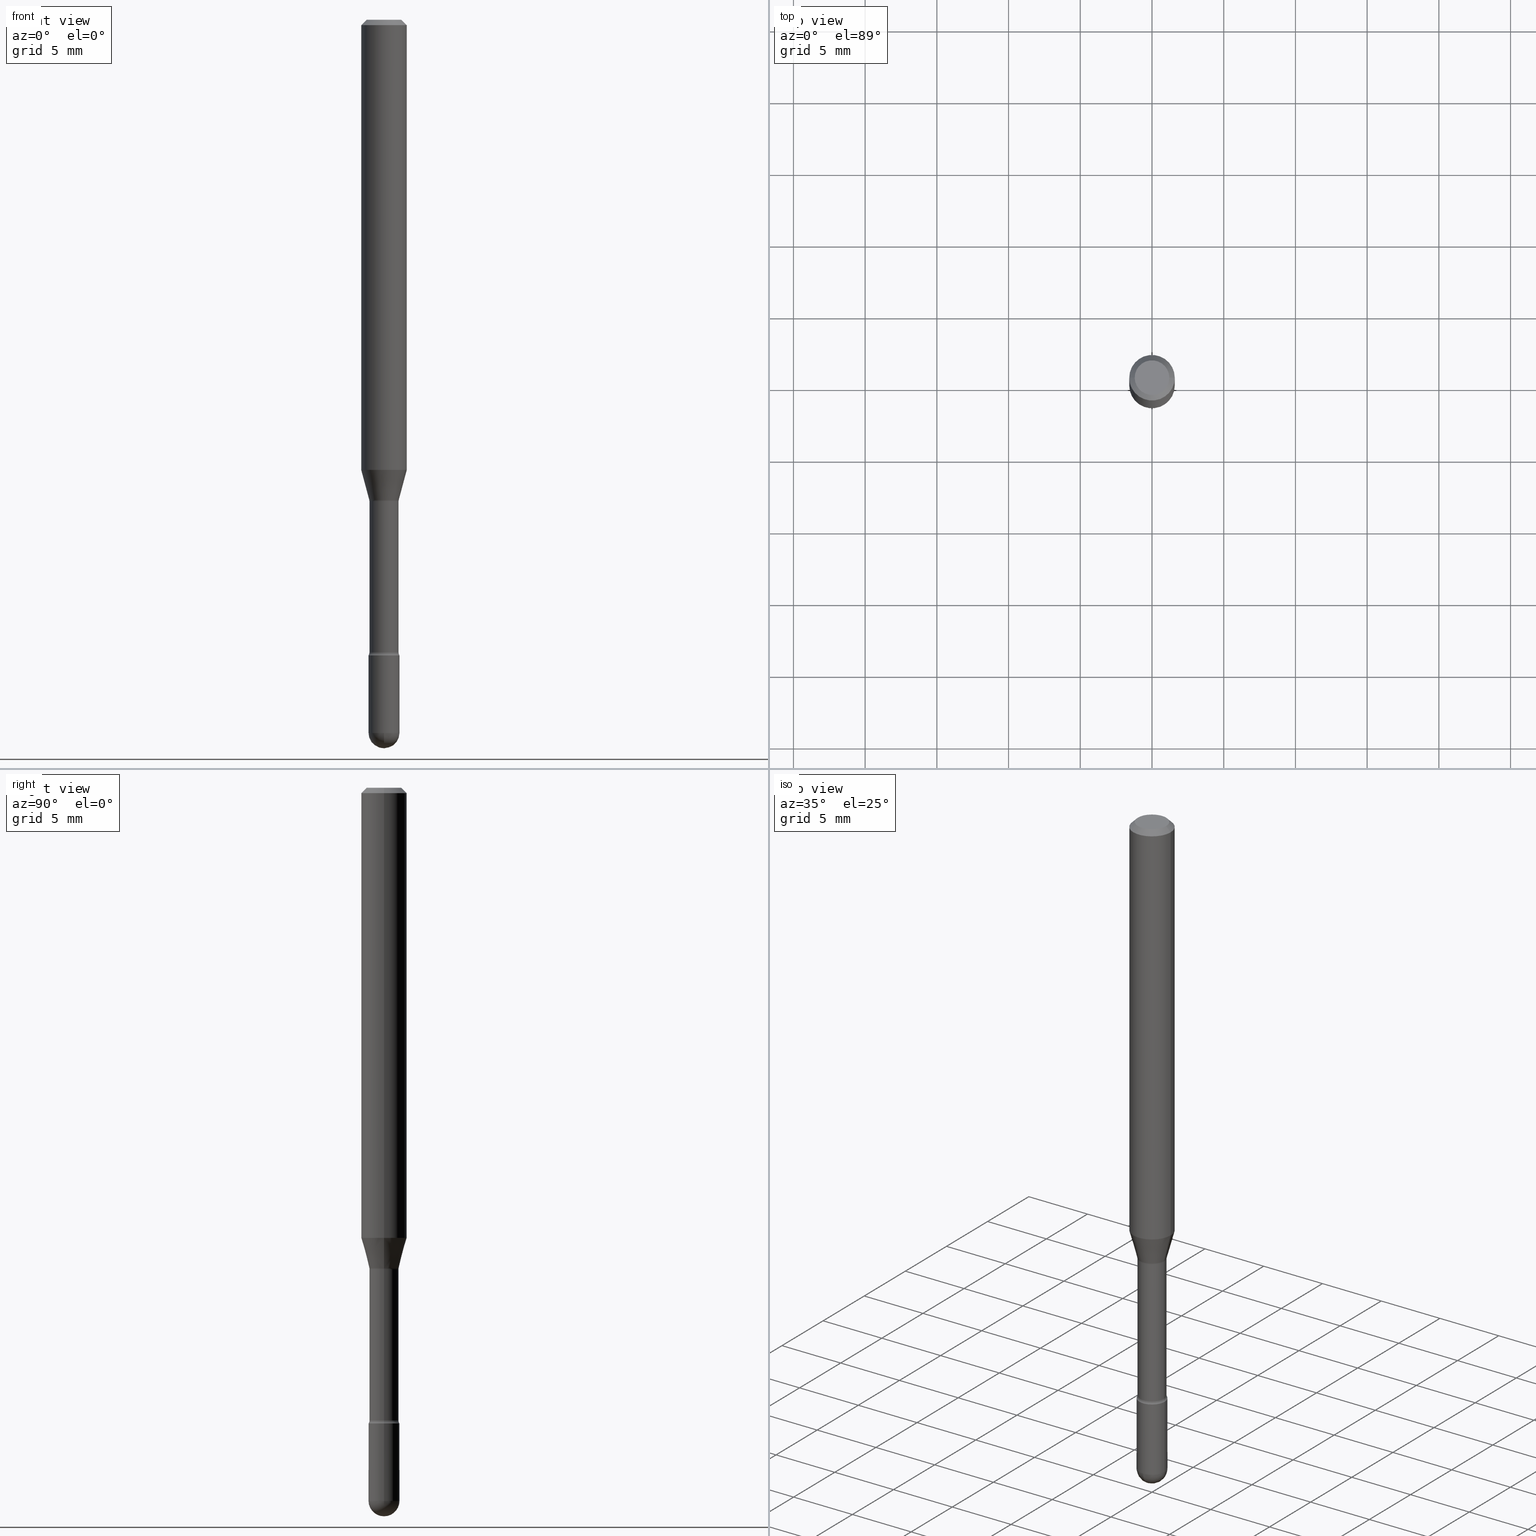
[diagram: canonical four-view strip — front | top / right | iso, engineering-drawing reading convention]
A machine part, canonical four-view strip (front | top / right | iso — engineering-drawing reading convention). The complete STEP part file that produces these views, byte-faithful:
ISO-10303-21;
HEADER;
FILE_DESCRIPTION (( 'STEP AP203' ),
    '1' );
FILE_NAME ('09823.STEP',
    '2024-04-10T01:52:32',
    ( '' ),
    ( '' ),
    'SwSTEP 2.0',
    'SolidWorks 2023',
    '' );
FILE_SCHEMA (( 'CONFIG_CONTROL_DESIGN' ));
ENDSEC;

DATA;
#1 = CARTESIAN_POINT ( 'NONE',  ( 0.05494999999999999885, -4.999364099989891634E-15, -1.321974787463811252 ) ) ;
#2 = AXIS2_PLACEMENT_3D ( 'NONE', #21, #414, #189 ) ;
#3 = DIRECTION ( 'NONE',  ( -2.445468806185136597E-29, 3.491481338843145583E-15, 1.000000000000000000 ) ) ;
#4 = EDGE_CURVE ( 'NONE', #18, #392, #115, .T. ) ;
#5 = AXIS2_PLACEMENT_3D ( 'NONE', #265, #38, #431 ) ;
#6 = CARTESIAN_POINT ( 'NONE',  ( 4.267343066793063832E-29, -6.092634936281288846E-15, -1.745000000000000107 ) ) ;
#7 = ADVANCED_FACE ( 'NONE', ( #364 ), #185, .T. ) ;
#8 = AXIS2_PLACEMENT_3D ( 'NONE', #566, #383, #518 ) ;
#9 = DIRECTION ( 'NONE',  ( -2.445468806185136597E-29, 3.491481338843145583E-15, 1.000000000000000000 ) ) ;
#10 = PERSON_AND_ORGANIZATION ( #53, #300 ) ;
#11 = DIRECTION ( 'NONE',  ( -2.445468806185136597E-29, 3.491481338843145583E-15, 1.000000000000000000 ) ) ;
#12 = ORIENTED_EDGE ( 'NONE', *, *, #231, .T. ) ;
#13 = APPROVAL_ROLE ( '' ) ;
#14 = ORIENTED_EDGE ( 'NONE', *, *, #320, .F. ) ;
#15 = AXIS2_PLACEMENT_3D ( 'NONE', #175, #173, #480 ) ;
#16 = AXIS2_PLACEMENT_3D ( 'NONE', #372, #37, #563 ) ;
#17 = DIRECTION ( 'NONE',  ( 1.000000000000000000, -6.982962677686276966E-15, 0.000000000000000000 ) ) ;
#18 = VERTEX_POINT ( 'NONE', #455 ) ;
#19 = LINE ( 'NONE', #488, #113 ) ;
#20 = CARTESIAN_POINT ( 'NONE',  ( 4.246883172195400307E-29, -6.063423629229748682E-15, -1.736633549139569688 ) ) ;
#21 = CARTESIAN_POINT ( 'NONE',  ( 0.000000000000000000, 0.000000000000000000, 0.000000000000000000 ) ) ;
#22 = EDGE_LOOP ( 'NONE', ( #191, #128, #499, #65 ) ) ;
#23 = DIRECTION ( 'NONE',  ( -1.000000000000000000, 6.982962677686266711E-15, 0.000000000000000000 ) ) ;
#24 = CYLINDRICAL_SURFACE ( 'NONE', #439, 0.06250000000000000000 ) ;
#25 = ORIENTED_EDGE ( 'NONE', *, *, #388, .T. ) ;
#26 = CARTESIAN_POINT ( 'NONE',  ( 0.03995000000000005491, -6.342392988203315207E-15, -1.736633549139569688 ) ) ;
#27 = EDGE_CURVE ( 'NONE', #90, #371, #487, .T. ) ;
#28 = ORIENTED_EDGE ( 'NONE', *, *, #522, .T. ) ;
#29 = DIRECTION ( 'NONE',  ( -2.445468806185136597E-29, 3.491481338843145583E-15, 1.000000000000000000 ) ) ;
#30 = FACE_OUTER_BOUND ( 'NONE', #130, .T. ) ;
#31 = DIRECTION ( 'NONE',  ( 1.000000000000000000, -6.982962677686276966E-15, 0.000000000000000000 ) ) ;
#32 = CYLINDRICAL_SURFACE ( 'NONE', #442, 0.04250000000000000999 ) ;
#33 = ADVANCED_FACE ( 'NONE', ( #103 ), #498, .T. ) ;
#34 = EDGE_CURVE ( 'NONE', #371, #90, #347, .T. ) ;
#35 = VECTOR ( 'NONE', #217, 39.37007874015748143 ) ;
#36 = AXIS2_PLACEMENT_3D ( 'NONE', #542, #413, #23 ) ;
#37 = DIRECTION ( 'NONE',  ( -2.445468806185136597E-29, 3.491481338843145583E-15, 1.000000000000000000 ) ) ;
#38 = DIRECTION ( 'NONE',  ( -2.445468806185136597E-29, 3.491481338843145583E-15, 1.000000000000000000 ) ) ;
#39 = CARTESIAN_POINT ( 'NONE',  ( 0.04250000000000000999, -2.967759138016664042E-16, 2.072375129713273202E-30 ) ) ;
#40 = DIRECTION ( 'NONE',  ( 1.000000000000000000, -6.982962677686273810E-15, 0.000000000000000000 ) ) ;
#41 = FACE_OUTER_BOUND ( 'NONE', #210, .T. ) ;
#42 = AXIS2_PLACEMENT_3D ( 'NONE', #551, #283, #377 ) ;
#43 = ADVANCED_FACE ( 'NONE', ( #249 ), #557, .F. ) ;
#44 = DIRECTION ( 'NONE',  ( 6.982962677686265922E-15, 1.000000000000000000, -6.427877632151215276E-15 ) ) ;
#45 = AXIS2_PLACEMENT_3D ( 'NONE', #468, #508, #244 ) ;
#46 = AXIS2_PLACEMENT_3D ( 'NONE', #484, #9, #350 ) ;
#47 = ORIENTED_EDGE ( 'NONE', *, *, #343, .F. ) ;
#48 = DIRECTION ( 'NONE',  ( 7.105427357601001859E-15, 1.000000000000000000, -3.491481338843145583E-15 ) ) ;
#49 = EDGE_CURVE ( 'NONE', #450, #473, #63, .T. ) ;
#50 = DESIGN_CONTEXT ( 'detailed design', #174, 'design' ) ;
#51 = EDGE_CURVE ( 'NONE', #314, #198, #71, .T. ) ;
#52 = DIRECTION ( 'NONE',  ( -2.445468806185136597E-29, 3.491481338843145583E-15, 1.000000000000000000 ) ) ;
#53 = PERSON ( 'UNSPECIFIED', 'UNSPECIFIED', 'UNSPECIFIED', ('UNSPECIFIED'), ('UNSPECIFIED'), ('UNSPECIFIED') ) ;
#54 = APPROVAL_DATE_TIME ( #544, #524 ) ;
#55 = TOROIDAL_SURFACE ( 'NONE', #100, 0.05494999999999999885, 0.01500000000000003240 ) ;
#56 = UNCERTAINTY_MEASURE_WITH_UNIT (LENGTH_MEASURE( 1.000000000000000082E-05 ), #500, 'distance_accuracy_value', 'NONE');
#57 = ORIENTED_EDGE ( 'NONE', *, *, #4, .F. ) ;
#58 = EDGE_CURVE ( 'NONE', #238, #277, #429, .T. ) ;
#59 = EDGE_LOOP ( 'NONE', ( #415, #119, #474, #502, #288 ) ) ;
#60 = CC_DESIGN_PERSON_AND_ORGANIZATION_ASSIGNMENT ( #10, #224, ( #259 ) ) ;
#61 = EDGE_LOOP ( 'NONE', ( #340, #565, #83, #281 ) ) ;
#62 = CIRCLE ( 'NONE', #46, 0.04250000000000000999 ) ;
#63 = CIRCLE ( 'NONE', #381, 0.04249999999999999611 ) ;
#64 = TOROIDAL_SURFACE ( 'NONE', #355, 0.05494999999999999885, 0.01500000000000003240 ) ;
#65 = ORIENTED_EDGE ( 'NONE', *, *, #4, .T. ) ;
#66 = DIRECTION ( 'NONE',  ( 1.000000000000000000, -6.982962677686268288E-15, 4.883557194083112901E-29 ) ) ;
#67 = EDGE_CURVE ( 'NONE', #148, #450, #126, .T. ) ;
#68 = ORIENTED_EDGE ( 'NONE', *, *, #503, .F. ) ;
#69 = VERTEX_POINT ( 'NONE', #425 ) ;
#70 = APPROVAL_PERSON_ORGANIZATION ( #489, #236, #13 ) ;
#71 = CIRCLE ( 'NONE', #102, 0.04250000000000000999 ) ;
#72 = CARTESIAN_POINT ( 'NONE',  ( 4.787005188107404686E-29, -6.834574720785457840E-15, -1.957500000000000018 ) ) ;
#73 = AXIS2_PLACEMENT_3D ( 'NONE', #330, #120, #385 ) ;
#74 = DIRECTION ( 'NONE',  ( -2.445468806185136597E-29, 3.491481338843145583E-15, 1.000000000000000000 ) ) ;
#75 = CARTESIAN_POINT ( 'NONE',  ( 0.06250000000000000000, -4.811533449433681963E-16, -0.01500000000000008271 ) ) ;
#76 = DIRECTION ( 'NONE',  ( -2.445468806185136877E-29, 3.491481338843145188E-15, 1.000000000000000000 ) ) ;
#77 = APPLICATION_PROTOCOL_DEFINITION ( 'international standard', 'config_control_design', 1994, #174 ) ;
#78 = APPROVAL_DATE_TIME ( #240, #236 ) ;
#79 = EDGE_LOOP ( 'NONE', ( #96, #323, #95, #517 ) ) ;
#80 = CARTESIAN_POINT ( 'NONE',  ( 3.232848105305976376E-29, -4.615650300851030950E-15, -1.321974787463811252 ) ) ;
#81 = APPROVAL_PERSON_ORGANIZATION ( #318, #524, #366 ) ;
#82 = DIRECTION ( 'NONE',  ( -1.000000000000000000, 7.105427357601009747E-15, 0.000000000000000000 ) ) ;
#83 = ORIENTED_EDGE ( 'NONE', *, *, #304, .T. ) ;
#84 = FACE_OUTER_BOUND ( 'NONE', #548, .T. ) ;
#85 = CIRCLE ( 'NONE', #403, 0.04046111260566397777 ) ;
#86 = CARTESIAN_POINT ( 'NONE',  ( -0.05494999999999999885, -4.225207067550855512E-15, -1.321974787463811252 ) ) ;
#87 = ADVANCED_FACE ( 'NONE', ( #423 ), #55, .F. ) ;
#88 = TOROIDAL_SURFACE ( 'NONE', #260, 0.05495000000000005436, 0.01499999999999999598 ) ;
#89 = DIRECTION ( 'NONE',  ( -1.000000000000000000, 6.982962677686265922E-15, -4.883557194083112340E-29 ) ) ;
#90 = VERTEX_POINT ( 'NONE', #26 ) ;
#91 = DATE_AND_TIME ( #410, #380 ) ;
#92 = APPROVAL_STATUS ( 'not_yet_approved' ) ;
#93 = ORIENTED_EDGE ( 'NONE', *, *, #51, .F. ) ;
#94 = EDGE_CURVE ( 'NONE', #371, #392, #111, .T. ) ;
#95 = ORIENTED_EDGE ( 'NONE', *, *, #133, .T. ) ;
#96 = ORIENTED_EDGE ( 'NONE', *, *, #94, .F. ) ;
#97 = DIRECTION ( 'NONE',  ( 1.000000000000000000, -6.982962677686270655E-15, 0.000000000000000000 ) ) ;
#98 = PERSON_AND_ORGANIZATION ( #53, #300 ) ;
#99 = ORIENTED_EDGE ( 'NONE', *, *, #477, .T. ) ;
#100 = AXIS2_PLACEMENT_3D ( 'NONE', #80, #29, #504 ) ;
#101 = APPROVAL_PERSON_ORGANIZATION ( #459, #215, #151 ) ;
#102 = AXIS2_PLACEMENT_3D ( 'NONE', #72, #333, #286 ) ;
#103 = FACE_OUTER_BOUND ( 'NONE', #362, .T. ) ;
#104 = LENGTH_MEASURE_WITH_UNIT ( LENGTH_MEASURE( 0.02539999999999999897 ), #326 );
#105 = ORIENTED_EDGE ( 'NONE', *, *, #452, .F. ) ;
#106 = APPROVAL_STATUS ( 'not_yet_approved' ) ;
#107 =( NAMED_UNIT ( * ) PLANE_ANGLE_UNIT ( ) SI_UNIT ( $, .RADIAN. ) );
#108 = ORIENTED_EDGE ( 'NONE', *, *, #494, .F. ) ;
#109 = CARTESIAN_POINT ( 'NONE',  ( 3.223354096787303073E-29, -4.602095372859339575E-15, -1.318092501787273330 ) ) ;
#110 = VERTEX_POINT ( 'NONE', #282 ) ;
#111 = LINE ( 'NONE', #194, #183 ) ;
#112 = SHAPE_DEFINITION_REPRESENTATION ( #138, #436 ) ;
#113 = VECTOR ( 'NONE', #493, 39.37007874015748143 ) ;
#114 = LOCAL_TIME ( 21, 52, 32.00000000000000000, #140 ) ;
#115 = CIRCLE ( 'NONE', #242, 0.03994999999999999246 ) ;
#116 = CARTESIAN_POINT ( 'NONE',  ( 4.267343066793063832E-29, -6.092634936281288846E-15, -1.745000000000000107 ) ) ;
#117 = CONICAL_SURFACE ( 'NONE', #227, 0.04046111260566397777, 0.2617993877991501295 ) ;
#118 = DIRECTION ( 'NONE',  ( -0.2588190451025214611, 5.211531920934551042E-15, 0.9659258262890682012 ) ) ;
#119 = ORIENTED_EDGE ( 'NONE', *, *, #452, .T. ) ;
#120 = DIRECTION ( 'NONE',  ( -1.000000000000000000, 7.105427357601001070E-15, -4.926315508542082329E-29 ) ) ;
#121 = APPLICATION_CONTEXT ( 'configuration controlled 3d designs of mechanical parts and assemblies' ) ;
#122 = PRODUCT_RELATED_PRODUCT_CATEGORY ( 'detail', '', ( #337 ) ) ;
#123 = DIRECTION ( 'NONE',  ( -0.7071067811865475727, 2.468850131082257455E-15, -0.7071067811865474617 ) ) ;
#124 = CARTESIAN_POINT ( 'NONE',  ( -1.169113584055446105E-44, 1.669184350826100908E-30, 4.780733988912460139E-16 ) ) ;
#125 = EDGE_CURVE ( 'NONE', #110, #314, #534, .T. ) ;
#126 = LINE ( 'NONE', #39, #397 ) ;
#127 = DIRECTION ( 'NONE',  ( -6.982962677686266711E-15, -1.000000000000000000, 3.491481338843145583E-15 ) ) ;
#128 = ORIENTED_EDGE ( 'NONE', *, *, #303, .F. ) ;
#129 = CIRCLE ( 'NONE', #507, 0.06250000000000000000 ) ;
#130 = EDGE_LOOP ( 'NONE', ( #199, #490, #475, #446 ) ) ;
#131 = FACE_OUTER_BOUND ( 'NONE', #315, .T. ) ;
#132 = PLANE ( 'NONE',  #207 ) ;
#133 = EDGE_CURVE ( 'NONE', #90, #18, #280, .T. ) ;
#134 = AXIS2_PLACEMENT_3D ( 'NONE', #412, #153, #324 ) ;
#135 = ADVANCED_FACE ( 'NONE', ( #196 ), #88, .F. ) ;
#136 = DIRECTION ( 'NONE',  ( -2.438088387897960049E-29, 3.491481338843145188E-15, 1.000000000000000000 ) ) ;
#137 = AXIS2_PLACEMENT_3D ( 'NONE', #172, #89, #44 ) ;
#138 = PRODUCT_DEFINITION_SHAPE ( 'NONE', 'NONE',  #312 ) ;
#139 = DIMENSIONAL_EXPONENTS ( 1.000000000000000000, 0.000000000000000000, 0.000000000000000000, 0.000000000000000000, 0.000000000000000000, 0.000000000000000000, 0.000000000000000000 ) ;
#140 = COORDINATED_UNIVERSAL_TIME_OFFSET ( 5, 0, .BEHIND. ) ;
#141 = VECTOR ( 'NONE', #154, 39.37007874015748143 ) ;
#142 = COORDINATED_UNIVERSAL_TIME_OFFSET ( 5, 0, .BEHIND. ) ;
#143 = VERTEX_POINT ( 'NONE', #306 ) ;
#144 = VECTOR ( 'NONE', #118, 39.37007874015747433 ) ;
#145 = ADVANCED_FACE ( 'NONE', ( #235 ), #117, .T. ) ;
#146 = VERTEX_POINT ( 'NONE', #209 ) ;
#147 = EDGE_CURVE ( 'NONE', #110, #146, #510, .T. ) ;
#148 = VERTEX_POINT ( 'NONE', #289 ) ;
#149 = ORIENTED_EDGE ( 'NONE', *, *, #486, .T. ) ;
#150 = DIRECTION ( 'NONE',  ( 1.000000000000000000, -6.982962677686266711E-15, 4.852736867747366207E-29 ) ) ;
#151 = APPROVAL_ROLE ( '' ) ;
#152 = ORIENTED_EDGE ( 'NONE', *, *, #125, .T. ) ;
#153 = DIRECTION ( 'NONE',  ( -2.445468806185136597E-29, 3.491481338843145583E-15, 1.000000000000000000 ) ) ;
#154 = DIRECTION ( 'NONE',  ( -2.445468806185136877E-29, 3.491481338843145188E-15, 1.000000000000000000 ) ) ;
#155 = ORIENTED_EDGE ( 'NONE', *, *, #537, .F. ) ;
#156 = CARTESIAN_POINT ( 'NONE',  ( 3.316907271900976096E-16, 0.04749999999999999362, 3.181781981480094004E-17 ) ) ;
#157 = CARTESIAN_POINT ( 'NONE',  ( 3.668203209277725232E-31, -5.237222008264747365E-17, -0.01500000000000008271 ) ) ;
#158 = DIRECTION ( 'NONE',  ( 1.000000000000000000, -6.982962677686255667E-15, 0.000000000000000000 ) ) ;
#159 = DIRECTION ( 'NONE',  ( 1.000000000000000000, -6.982962677686266711E-15, 4.852736867747366207E-29 ) ) ;
#160 = DIRECTION ( 'NONE',  ( 1.000000000000000000, -6.982962677686276966E-15, 0.000000000000000000 ) ) ;
#161 = CIRCLE ( 'NONE', #134, 0.04250000000000000999 ) ;
#162 = CC_DESIGN_PERSON_AND_ORGANIZATION_ASSIGNMENT ( #351, #531, ( #204 ) ) ;
#163 = CIRCLE ( 'NONE', #438, 0.04249999999999999611 ) ;
#164 = CARTESIAN_POINT ( 'NONE',  ( -1.169113584055446105E-44, 1.669184350826100908E-30, 4.780733988912460139E-16 ) ) ;
#165 = DIRECTION ( 'NONE',  ( -2.445468806185136597E-29, 3.491481338843145583E-15, 1.000000000000000000 ) ) ;
#166 = CARTESIAN_POINT ( 'NONE',  ( 0.04749999999999999362, -4.035134999187581581E-16, -8.274703207154280181E-17 ) ) ;
#167 = CARTESIAN_POINT ( 'NONE',  ( -0.04249999999999998918, -5.790654273583246394E-15, -1.745000000000000107 ) ) ;
#168 = CARTESIAN_POINT ( 'NONE',  ( 2.967759138017140317E-16, 0.04249999999999314049, -1.957500000000000462 ) ) ;
#169 = LINE ( 'NONE', #341, #396 ) ;
#170 = AXIS2_PLACEMENT_3D ( 'NONE', #361, #538, #274 ) ;
#171 = DIRECTION ( 'NONE',  ( -2.445468806185136597E-29, 3.491481338843145583E-15, 1.000000000000000000 ) ) ;
#172 = CARTESIAN_POINT ( 'NONE',  ( 4.787005188107404686E-29, -6.834574720785457840E-15, -1.957500000000000018 ) ) ;
#173 = DIRECTION ( 'NONE',  ( -1.000000000000000000, 6.982962677686265922E-15, -4.883557194083112340E-29 ) ) ;
#174 = APPLICATION_CONTEXT ( 'configuration controlled 3d designs of mechanical parts and assemblies' ) ;
#175 = CARTESIAN_POINT ( 'NONE',  ( 4.787005188107404686E-29, -6.834574720785457840E-15, -1.957500000000000018 ) ) ;
#176 = CARTESIAN_POINT ( 'NONE',  ( -0.04046111260566397777, -4.092716417593515738E-15, -1.318092501787273330 ) ) ;
#177 = DIRECTION ( 'NONE',  ( 1.000000000000000000, -6.982962677686266711E-15, 4.876176775795935793E-29 ) ) ;
#178 = PERSON_AND_ORGANIZATION_ROLE ( 'creator' ) ;
#179 = CALENDAR_DATE ( 2024, 9, 4 ) ;
#180 = AXIS2_PLACEMENT_3D ( 'NONE', #269, #223, #97 ) ;
#181 = LOCAL_TIME ( 21, 52, 32.00000000000000000, #202 ) ;
#182 = ORIENTED_EDGE ( 'NONE', *, *, #125, .F. ) ;
#183 = VECTOR ( 'NONE', #550, 39.37007874015748143 ) ;
#184 = EDGE_LOOP ( 'NONE', ( #68, #270, #149, #12 ) ) ;
#185 = CYLINDRICAL_SURFACE ( 'NONE', #170, 0.03995000000000002716 ) ;
#186 = ORIENTED_EDGE ( 'NONE', *, *, #470, .T. ) ;
#187 = CARTESIAN_POINT ( 'NONE',  ( 3.223354096787303073E-29, -4.602095372859339575E-15, -1.318092501787273330 ) ) ;
#188 = DIRECTION ( 'NONE',  ( -2.445468806185136597E-29, 3.491481338843145583E-15, 1.000000000000000000 ) ) ;
#189 = DIRECTION ( 'NONE',  ( 1.000000000000000000, -6.982962677686266711E-15, 4.876176775795935793E-29 ) ) ;
#190 = DATE_TIME_ROLE ( 'creation_date' ) ;
#191 = ORIENTED_EDGE ( 'NONE', *, *, #388, .F. ) ;
#192 = CARTESIAN_POINT ( 'NONE',  ( 4.246883172195400307E-29, -6.063423629229748682E-15, -1.736633549139569688 ) ) ;
#193 = EDGE_LOOP ( 'NONE', ( #536, #353 ) ) ;
#194 = CARTESIAN_POINT ( 'NONE',  ( -0.03995000000000002716, 2.838618229361618935E-16, 4.780733988912441404E-16 ) ) ;
#195 = DIRECTION ( 'NONE',  ( 0.2588190451025214611, 1.565188264969621573E-15, 0.9659258262890682012 ) ) ;
#196 = FACE_OUTER_BOUND ( 'NONE', #61, .T. ) ;
#197 = DIRECTION ( 'NONE',  ( -2.445468806185136597E-29, 3.491481338843145583E-15, 1.000000000000000000 ) ) ;
#198 = VERTEX_POINT ( 'NONE', #247 ) ;
#199 = ORIENTED_EDGE ( 'NONE', *, *, #465, .F. ) ;
#200 = DIRECTION ( 'NONE',  ( 2.438088387897960049E-29, -3.491481338843145188E-15, -1.000000000000000000 ) ) ;
#201 = CARTESIAN_POINT ( 'NONE',  ( 4.267343066793063832E-29, -6.092634936281288846E-15, -1.745000000000000107 ) ) ;
#202 = COORDINATED_UNIVERSAL_TIME_OFFSET ( 5, 0, .BEHIND. ) ;
#203 = AXIS2_PLACEMENT_3D ( 'NONE', #546, #11, #541 ) ;
#204 = PRODUCT_DEFINITION_FORMATION_WITH_SPECIFIED_SOURCE ( 'ANY', '', #337, .NOT_KNOWN. ) ;
#205 = ADVANCED_FACE ( 'NONE', ( #424 ), #32, .T. ) ;
#206 = CARTESIAN_POINT ( 'NONE',  ( 2.023552857353652888E-45, -2.889097183224559242E-31, -8.274703207154537794E-17 ) ) ;
#207 = AXIS2_PLACEMENT_3D ( 'NONE', #6, #345, #219 ) ;
#208 = DIRECTION ( 'NONE',  ( -2.445468806185136597E-29, 3.491481338843145583E-15, 1.000000000000000000 ) ) ;
#209 = CARTESIAN_POINT ( 'NONE',  ( -3.019806626979944802E-16, -0.04250000000000681705, -1.957499999999999796 ) ) ;
#210 = EDGE_LOOP ( 'NONE', ( #14, #271, #28, #449 ) ) ;
#211 = DIRECTION ( 'NONE',  ( 1.000000000000000000, -6.982962677686265922E-15, 0.000000000000000000 ) ) ;
#212 = CARTESIAN_POINT ( 'NONE',  ( -0.04046111260566397777, -4.314601876432080730E-15, -1.318092501787273330 ) ) ;
#213 = FACE_OUTER_BOUND ( 'NONE', #311, .T. ) ;
#214 = CARTESIAN_POINT ( 'NONE',  ( 3.668203209277725232E-31, -5.237222008264747365E-17, -0.01500000000000008271 ) ) ;
#215 = APPROVAL ( #106, 'UNSPECIFIED' ) ;
#216 = EDGE_CURVE ( 'NONE', #146, #148, #62, .T. ) ;
#217 = DIRECTION ( 'NONE',  ( -2.445468806185136877E-29, 3.491481338843145188E-15, 1.000000000000000000 ) ) ;
#218 = CC_DESIGN_DATE_AND_TIME_ASSIGNMENT ( #352, #310, ( #259 ) ) ;
#219 = DIRECTION ( 'NONE',  ( 1.000000000000000000, -6.982962677686265922E-15, 4.876176775795935793E-29 ) ) ;
#220 = ADVANCED_FACE ( 'NONE', ( #530 ), #256, .T. ) ;
#221 = DIRECTION ( 'NONE',  ( 1.000000000000000000, -6.982962677686269866E-15, 4.883557194083114022E-29 ) ) ;
#222 = COORDINATED_UNIVERSAL_TIME_OFFSET ( 5, 0, .BEHIND. ) ;
#223 = DIRECTION ( 'NONE',  ( -6.982962677686266711E-15, -1.000000000000000000, 3.491481338843145583E-15 ) ) ;
#224 = PERSON_AND_ORGANIZATION_ROLE ( 'classification_officer' ) ;
#225 = EDGE_LOOP ( 'NONE', ( #279, #295, #319, #495 ) ) ;
#226 = CARTESIAN_POINT ( 'NONE',  ( 3.232848105305976376E-29, -4.615650300851030950E-15, -1.321974787463811252 ) ) ;
#227 = AXIS2_PLACEMENT_3D ( 'NONE', #553, #511, #160 ) ;
#228 = AXIS2_PLACEMENT_3D ( 'NONE', #322, #278, #543 ) ;
#229 = COORDINATED_UNIVERSAL_TIME_OFFSET ( 5, 0, .BEHIND. ) ;
#230 = ORIENTED_EDGE ( 'NONE', *, *, #49, .T. ) ;
#231 = EDGE_CURVE ( 'NONE', #338, #367, #456, .T. ) ;
#232 = CONICAL_SURFACE ( 'NONE', #556, 0.06250000000000000000, 0.7853981633974483900 ) ;
#233 = DATE_AND_TIME ( #398, #114 ) ;
#234 = ORIENTED_EDGE ( 'NONE', *, *, #512, .F. ) ;
#235 = FACE_OUTER_BOUND ( 'NONE', #402, .T. ) ;
#236 = APPROVAL ( #92, 'UNSPECIFIED' ) ;
#237 = DIRECTION ( 'NONE',  ( 1.000000000000000000, -6.982962677686265922E-15, 0.000000000000000000 ) ) ;
#238 = VERTEX_POINT ( 'NONE', #426 ) ;
#239 = ADVANCED_FACE ( 'NONE', ( #463 ), #316, .F. ) ;
#240 = DATE_AND_TIME ( #378, #181 ) ;
#241 = ORIENTED_EDGE ( 'NONE', *, *, #27, .F. ) ;
#242 = AXIS2_PLACEMENT_3D ( 'NONE', #226, #405, #17 ) ;
#243 = CLOSED_SHELL ( 'NONE', ( #205, #430, #448, #220, #529 ) ) ;
#244 = DIRECTION ( 'NONE',  ( 1.000000000000000000, 0.000000000000000000, 0.000000000000000000 ) ) ;
#245 = MECHANICAL_CONTEXT ( 'NONE', #121, 'mechanical' ) ;
#246 = LINE ( 'NONE', #212, #144 ) ;
#247 = CARTESIAN_POINT ( 'NONE',  ( -0.04250000000000000999, -6.161624165835330496E-15, -1.957500000000000018 ) ) ;
#248 = EDGE_LOOP ( 'NONE', ( #516, #152, #234, #407 ) ) ;
#249 = FACE_OUTER_BOUND ( 'NONE', #193, .T. ) ;
#250 = DIRECTION ( 'NONE',  ( -2.445468806185136597E-29, 3.491481338843145583E-15, 1.000000000000000000 ) ) ;
#251 = AXIS2_PLACEMENT_3D ( 'NONE', #1, #127, #158 ) ;
#252 = CIRCLE ( 'NONE', #454, 0.04250000000000000999 ) ;
#253 = AXIS2_PLACEMENT_3D ( 'NONE', #206, #325, #387 ) ;
#254 = CARTESIAN_POINT ( 'NONE',  ( -0.03994999999999999246, -5.055675142104229106E-15, -1.321974787463811252 ) ) ;
#255 = FACE_OUTER_BOUND ( 'NONE', #451, .T. ) ;
#256 = SPHERICAL_SURFACE ( 'NONE', #15, 0.04249999999999994754 ) ;
#257 = ORIENTED_EDGE ( 'NONE', *, *, #458, .F. ) ;
#258 = CIRCLE ( 'NONE', #299, 0.06250000000000000000 ) ;
#259 = SECURITY_CLASSIFICATION ( '', '', #305 ) ;
#260 = AXIS2_PLACEMENT_3D ( 'NONE', #273, #293, #66 ) ;
#261 = DIRECTION ( 'NONE',  ( 2.445468806185136597E-29, -3.491481338843145583E-15, -1.000000000000000000 ) ) ;
#262 = CARTESIAN_POINT ( 'NONE',  ( 3.223354096787303073E-29, -4.602095372859339575E-15, -1.318092501787273330 ) ) ;
#263 = CARTESIAN_POINT ( 'NONE',  ( 3.668203209277725232E-31, -5.237222008264747365E-17, -0.01500000000000008271 ) ) ;
#264 = EDGE_CURVE ( 'NONE', #473, #450, #479, .T. ) ;
#265 = CARTESIAN_POINT ( 'NONE',  ( 2.023552857353652888E-45, -2.889097183224559242E-31, -8.274703207154537794E-17 ) ) ;
#266 = CALENDAR_DATE ( 2024, 9, 4 ) ;
#267 = ADVANCED_FACE ( 'NONE', ( #432 ), #336, .T. ) ;
#268 = CC_DESIGN_APPROVAL ( #236, ( #259 ) ) ;
#269 = CARTESIAN_POINT ( 'NONE',  ( 0.05495000000000005436, -6.447137428368609366E-15, -1.736633549139569688 ) ) ;
#270 = ORIENTED_EDGE ( 'NONE', *, *, #58, .F. ) ;
#271 = ORIENTED_EDGE ( 'NONE', *, *, #472, .T. ) ;
#272 = ORIENTED_EDGE ( 'NONE', *, *, #216, .T. ) ;
#273 = CARTESIAN_POINT ( 'NONE',  ( 4.246883172195400307E-29, -6.063423629229748682E-15, -1.736633549139569688 ) ) ;
#274 = DIRECTION ( 'NONE',  ( 1.000000000000000000, -6.982962677686265922E-15, 4.858810380723266639E-29 ) ) ;
#275 = CIRCLE ( 'NONE', #5, 0.04749999999999999362 ) ;
#276 = CC_DESIGN_PERSON_AND_ORGANIZATION_ASSIGNMENT ( #98, #491, ( #312 ) ) ;
#277 = VERTEX_POINT ( 'NONE', #166 ) ;
#278 = DIRECTION ( 'NONE',  ( 7.105427357601001859E-15, 1.000000000000000000, -3.491481338843145583E-15 ) ) ;
#279 = ORIENTED_EDGE ( 'NONE', *, *, #458, .T. ) ;
#280 = LINE ( 'NONE', #376, #309 ) ;
#281 = ORIENTED_EDGE ( 'NONE', *, *, #470, .F. ) ;
#282 = CARTESIAN_POINT ( 'NONE',  ( 4.892754840734779604E-29, -6.980360303238103264E-15, -2.000000000000000000 ) ) ;
#283 = DIRECTION ( 'NONE',  ( -2.445468806185136597E-29, 3.491481338843145583E-15, 1.000000000000000000 ) ) ;
#284 = CIRCLE ( 'NONE', #496, 0.01500000000000002720 ) ;
#285 = CONICAL_SURFACE ( 'NONE', #301, 0.04046111260566397777, 0.2617993877991501295 ) ;
#286 = DIRECTION ( 'NONE',  ( 1.000000000000000000, -6.982962677686273810E-15, 0.000000000000000000 ) ) ;
#287 = CARTESIAN_POINT ( 'NONE',  ( 4.267343066793063832E-29, -6.092634936281288846E-15, -1.745000000000000107 ) ) ;
#288 = ORIENTED_EDGE ( 'NONE', *, *, #512, .T. ) ;
#289 = CARTESIAN_POINT ( 'NONE',  ( 0.04250000000000000999, -6.760380742335040388E-15, -1.957500000000000018 ) ) ;
#290 = PERSON_AND_ORGANIZATION_ROLE ( 'design_owner' ) ;
#291 = CARTESIAN_POINT ( 'NONE',  ( -1.169113584055446105E-44, 1.669184350826100908E-30, 4.780733988912460139E-16 ) ) ;
#292 = DIRECTION ( 'NONE',  ( 0.7071067811865475727, -7.319954787623256045E-15, -0.7071067811865474617 ) ) ;
#293 = DIRECTION ( 'NONE',  ( -2.445468806185136597E-29, 3.491481338843145583E-15, 1.000000000000000000 ) ) ;
#294 = CARTESIAN_POINT ( 'NONE',  ( 0.06250000000000000000, -4.888073874380391431E-16, -0.01500000000000008271 ) ) ;
#295 = ORIENTED_EDGE ( 'NONE', *, *, #465, .T. ) ;
#296 = PLANE ( 'NONE',  #506 ) ;
#297 = ORIENTED_EDGE ( 'NONE', *, *, #477, .F. ) ;
#298 = LINE ( 'NONE', #478, #35 ) ;
#299 = AXIS2_PLACEMENT_3D ( 'NONE', #394, #346, #302 ) ;
#300 = ORGANIZATION ( 'UNSPECIFIED', 'UNSPECIFIED', '' ) ;
#301 = AXIS2_PLACEMENT_3D ( 'NONE', #262, #434, #447 ) ;
#302 = DIRECTION ( 'NONE',  ( 1.000000000000000000, -6.982962677686270655E-15, 0.000000000000000000 ) ) ;
#303 = EDGE_CURVE ( 'NONE', #69, #386, #382, .T. ) ;
#304 = EDGE_CURVE ( 'NONE', #505, #521, #331, .T. ) ;
#305 = SECURITY_CLASSIFICATION_LEVEL ( 'unclassified' ) ;
#306 = CARTESIAN_POINT ( 'NONE',  ( 0.06250000000000000000, -4.751355335960405821E-15, -1.235842254289322151 ) ) ;
#307 = CIRCLE ( 'NONE', #228, 0.01499999999999999424 ) ;
#308 = AXIS2_PLACEMENT_3D ( 'NONE', #20, #188, #237 ) ;
#309 = VECTOR ( 'NONE', #466, 39.37007874015748143 ) ;
#310 = DATE_TIME_ROLE ( 'classification_date' ) ;
#311 = EDGE_LOOP ( 'NONE', ( #471, #25, #441, #47 ) ) ;
#312 = PRODUCT_DEFINITION ( 'UNKNOWN', '', #204, #50 ) ;
#313 = ORIENTED_EDGE ( 'NONE', *, *, #264, .T. ) ;
#314 = VERTEX_POINT ( 'NONE', #168 ) ;
#315 = EDGE_LOOP ( 'NONE', ( #421, #492 ) ) ;
#316 = TOROIDAL_SURFACE ( 'NONE', #16, 0.05495000000000005436, 0.01499999999999999598 ) ;
#317 = DIRECTION ( 'NONE',  ( -2.445468806185136597E-29, 3.491481338843145583E-15, 1.000000000000000000 ) ) ;
#318 = PERSON_AND_ORGANIZATION ( #53, #300 ) ;
#319 = ORIENTED_EDGE ( 'NONE', *, *, #562, .F. ) ;
#320 = EDGE_CURVE ( 'NONE', #386, #464, #246, .T. ) ;
#321 = CLOSED_SHELL ( 'NONE', ( #422, #267, #135, #33, #549, #145, #408, #554, #354, #43, #360, #239, #7, #87 ) ) ;
#322 = CARTESIAN_POINT ( 'NONE',  ( -0.05495000000000005436, -5.672980395929573243E-15, -1.736633549139569688 ) ) ;
#323 = ORIENTED_EDGE ( 'NONE', *, *, #34, .T. ) ;
#324 = DIRECTION ( 'NONE',  ( 1.000000000000000000, -6.982962677686273810E-15, 0.000000000000000000 ) ) ;
#325 = DIRECTION ( 'NONE',  ( -2.445468806185136597E-29, 3.491481338843145583E-15, 1.000000000000000000 ) ) ;
#326 =( LENGTH_UNIT ( ) NAMED_UNIT ( * ) SI_UNIT ( $, .METRE. ) );
#327 = APPLICATION_PROTOCOL_DEFINITION ( 'international standard', 'config_control_design', 1994, #121 ) ;
#328 = CIRCLE ( 'NONE', #180, 0.01499999999999999424 ) ;
#329 = ORIENTED_EDGE ( 'NONE', *, *, #147, .T. ) ;
#330 = CARTESIAN_POINT ( 'NONE',  ( 4.787005188107404686E-29, -6.834574720785457840E-15, -1.957500000000000018 ) ) ;
#331 = CIRCLE ( 'NONE', #482, 0.04249999999999999611 ) ;
#332 = EDGE_CURVE ( 'NONE', #392, #18, #469, .T. ) ;
#333 = DIRECTION ( 'NONE',  ( -2.445468806185136597E-29, 3.491481338843145583E-15, 1.000000000000000000 ) ) ;
#334 = PERSON_AND_ORGANIZATION ( #53, #300 ) ;
#335 = DIRECTION ( 'NONE',  ( 1.000000000000000000, -6.982962677686276177E-15, 0.000000000000000000 ) ) ;
#336 = CYLINDRICAL_SURFACE ( 'NONE', #391, 0.03995000000000002716 ) ;
#337 = PRODUCT ( '09823', '09823', '', ( #245 ) ) ;
#338 = VERTEX_POINT ( 'NONE', #501 ) ;
#339 = CARTESIAN_POINT ( 'NONE',  ( 4.787005188107404686E-29, -6.834574720785457840E-15, -1.957500000000000018 ) ) ;
#340 = ORIENTED_EDGE ( 'NONE', *, *, #34, .F. ) ;
#341 = CARTESIAN_POINT ( 'NONE',  ( 0.04046111260566397777, -4.884633812082352936E-15, -1.318092501787273330 ) ) ;
#342 = CARTESIAN_POINT ( 'NONE',  ( 3.232848105305976376E-29, -4.615650300851030950E-15, -1.321974787463811252 ) ) ;
#343 = EDGE_CURVE ( 'NONE', #69, #18, #379, .T. ) ;
#344 = CARTESIAN_POINT ( 'NONE',  ( -0.06250000000000000000, 3.840629472727441958E-16, -0.01500000000000008271 ) ) ;
#345 = DIRECTION ( 'NONE',  ( -2.438088387897960049E-29, 3.491481338843145188E-15, 1.000000000000000000 ) ) ;
#346 = DIRECTION ( 'NONE',  ( -2.445468806185136597E-29, 3.491481338843145583E-15, 1.000000000000000000 ) ) ;
#347 = CIRCLE ( 'NONE', #560, 0.03995000000000005491 ) ;
#348 = EDGE_CURVE ( 'NONE', #521, #505, #163, .T. ) ;
#349 = CC_DESIGN_PERSON_AND_ORGANIZATION_ASSIGNMENT ( #401, #178, ( #204 ) ) ;
#350 = DIRECTION ( 'NONE',  ( 1.000000000000000000, -6.982962677686273810E-15, 0.000000000000000000 ) ) ;
#351 = PERSON_AND_ORGANIZATION ( #53, #300 ) ;
#352 = DATE_AND_TIME ( #179, #558 ) ;
#353 = ORIENTED_EDGE ( 'NONE', *, *, #494, .T. ) ;
#354 = ADVANCED_FACE ( 'NONE', ( #514 ), #232, .T. ) ;
#355 = AXIS2_PLACEMENT_3D ( 'NONE', #342, #52, #221 ) ;
#356 = VECTOR ( 'NONE', #292, 39.37007874015748143 ) ;
#357 = ORIENTED_EDGE ( 'NONE', *, *, #303, .T. ) ;
#358 = APPROVAL_DATE_TIME ( #91, #215 ) ;
#359 = EDGE_LOOP ( 'NONE', ( #155, #241, #186, #393 ) ) ;
#360 = ADVANCED_FACE ( 'NONE', ( #131 ), #296, .F. ) ;
#361 = CARTESIAN_POINT ( 'NONE',  ( -1.169113584055446105E-44, 1.669184350826100908E-30, 4.780733988912460139E-16 ) ) ;
#362 = EDGE_LOOP ( 'NONE', ( #108, #533, #540, #535 ) ) ;
#363 = DIRECTION ( 'NONE',  ( -2.445468806185136597E-29, 3.491481338843145583E-15, 1.000000000000000000 ) ) ;
#364 = FACE_OUTER_BOUND ( 'NONE', #79, .T. ) ;
#365 = CYLINDRICAL_SURFACE ( 'NONE', #520, 0.06250000000000000000 ) ;
#366 = APPROVAL_ROLE ( '' ) ;
#367 = VERTEX_POINT ( 'NONE', #294 ) ;
#368 = DIRECTION ( 'NONE',  ( -2.445468806185136597E-29, 3.491481338843145583E-15, 1.000000000000000000 ) ) ;
#369 = LOCAL_TIME ( 21, 52, 32.00000000000000000, #222 ) ;
#370 = DIRECTION ( 'NONE',  ( 1.000000000000000000, -6.982962677686266711E-15, 0.000000000000000000 ) ) ;
#371 = VERTEX_POINT ( 'NONE', #443 ) ;
#372 = CARTESIAN_POINT ( 'NONE',  ( 4.246883172195400307E-29, -6.063423629229748682E-15, -1.736633549139569688 ) ) ;
#373 = ORIENTED_EDGE ( 'NONE', *, *, #320, .T. ) ;
#374 =( NAMED_UNIT ( * ) SI_UNIT ( $, .STERADIAN. ) SOLID_ANGLE_UNIT ( ) );
#375 = DIRECTION ( 'NONE',  ( 1.000000000000000000, -6.982962677686265922E-15, 4.858810380723266639E-29 ) ) ;
#376 = CARTESIAN_POINT ( 'NONE',  ( 0.03995000000000002716, -2.789693589735648492E-16, 4.780733988912479861E-16 ) ) ;
#377 = DIRECTION ( 'NONE',  ( 1.000000000000000000, -6.982962677686276177E-15, 0.000000000000000000 ) ) ;
#378 = CALENDAR_DATE ( 2024, 9, 4 ) ;
#379 = CIRCLE ( 'NONE', #251, 0.01500000000000002720 ) ;
#380 = LOCAL_TIME ( 21, 52, 32.00000000000000000, #229 ) ;
#381 = AXIS2_PLACEMENT_3D ( 'NONE', #116, #515, #419 ) ;
#382 = CIRCLE ( 'NONE', #427, 0.04046111260566397777 ) ;
#383 = DIRECTION ( 'NONE',  ( 1.000000000000000000, -6.982962677686265922E-15, 4.883557194083112340E-29 ) ) ;
#384 = DIRECTION ( 'NONE',  ( -2.445468806185136597E-29, 3.491481338843145583E-15, 1.000000000000000000 ) ) ;
#385 = DIRECTION ( 'NONE',  ( -7.105427357601001070E-15, -1.000000000000000000, 0.000000000000000000 ) ) ;
#386 = VERTEX_POINT ( 'NONE', #176 ) ;
#387 = DIRECTION ( 'NONE',  ( 1.000000000000000000, -6.982962677686267499E-15, 4.884662768193073002E-29 ) ) ;
#388 = EDGE_CURVE ( 'NONE', #386, #392, #284, .T. ) ;
#389 = CARTESIAN_POINT ( 'NONE',  ( 3.232848105305976376E-29, -4.615650300851030950E-15, -1.321974787463811252 ) ) ;
#390 = CARTESIAN_POINT ( 'NONE',  ( 0.04249999999999998918, -6.389410850082956286E-15, -1.745000000000000107 ) ) ;
#391 = AXIS2_PLACEMENT_3D ( 'NONE', #291, #74, #375 ) ;
#392 = VERTEX_POINT ( 'NONE', #254 ) ;
#393 = ORIENTED_EDGE ( 'NONE', *, *, #348, .T. ) ;
#394 = CARTESIAN_POINT ( 'NONE',  ( 3.022213682230056525E-29, -4.314920168605014152E-15, -1.235842254289322151 ) ) ;
#395 = CARTESIAN_POINT ( 'NONE',  ( -0.06250000000000000000, -3.870830958754951536E-15, -1.235842254289322151 ) ) ;
#396 = VECTOR ( 'NONE', #195, 39.37007874015747433 ) ;
#397 = VECTOR ( 'NONE', #76, 39.37007874015748143 ) ;
#398 = CALENDAR_DATE ( 2024, 9, 4 ) ;
#399 = DIRECTION ( 'NONE',  ( 1.000000000000000000, -6.982962677686276966E-15, 0.000000000000000000 ) ) ;
#400 = APPROVAL_STATUS ( 'not_yet_approved' ) ;
#401 = PERSON_AND_ORGANIZATION ( #53, #300 ) ;
#402 = EDGE_LOOP ( 'NONE', ( #357, #373, #257, #440 ) ) ;
#403 = AXIS2_PLACEMENT_3D ( 'NONE', #187, #363, #399 ) ;
#404 = CC_DESIGN_SECURITY_CLASSIFICATION ( #259, ( #204 ) ) ;
#405 = DIRECTION ( 'NONE',  ( -2.445468806185136597E-29, 3.491481338843145583E-15, 1.000000000000000000 ) ) ;
#406 = AXIS2_PLACEMENT_3D ( 'NONE', #389, #384, #31 ) ;
#407 = ORIENTED_EDGE ( 'NONE', *, *, #216, .F. ) ;
#408 = ADVANCED_FACE ( 'NONE', ( #41 ), #285, .T. ) ;
#409 = FACE_OUTER_BOUND ( 'NONE', #225, .T. ) ;
#410 = CALENDAR_DATE ( 2024, 9, 4 ) ;
#411 = ORIENTED_EDGE ( 'NONE', *, *, #27, .T. ) ;
#412 = CARTESIAN_POINT ( 'NONE',  ( 4.787005188107404686E-29, -6.834574720785457840E-15, -1.957500000000000018 ) ) ;
#413 = DIRECTION ( 'NONE',  ( 2.445468806185136597E-29, -3.491481338843145583E-15, -1.000000000000000000 ) ) ;
#414 = DIRECTION ( 'NONE',  ( -2.445468806185136597E-29, 3.491481338843145583E-15, 1.000000000000000000 ) ) ;
#415 = ORIENTED_EDGE ( 'NONE', *, *, #51, .T. ) ;
#416 = LINE ( 'NONE', #344, #525 ) ;
#417 = DIRECTION ( 'NONE',  ( -2.445468806185136597E-29, 3.491481338843145583E-15, 1.000000000000000000 ) ) ;
#418 = ORIENTED_EDGE ( 'NONE', *, *, #264, .F. ) ;
#419 = DIRECTION ( 'NONE',  ( 1.000000000000000000, -6.982962677686276177E-15, 0.000000000000000000 ) ) ;
#420 = CC_DESIGN_PERSON_AND_ORGANIZATION_ASSIGNMENT ( #334, #290, ( #337 ) ) ;
#421 = ORIENTED_EDGE ( 'NONE', *, *, #348, .F. ) ;
#422 = ADVANCED_FACE ( 'NONE', ( #213 ), #64, .F. ) ;
#423 = FACE_OUTER_BOUND ( 'NONE', #22, .T. ) ;
#424 = FACE_OUTER_BOUND ( 'NONE', #59, .T. ) ;
#425 = CARTESIAN_POINT ( 'NONE',  ( 0.04046111260566397777, -4.884633812082352936E-15, -1.318092501787273330 ) ) ;
#426 = CARTESIAN_POINT ( 'NONE',  ( -0.04749999999999999362, 3.578768372314208041E-16, -8.274703207154778150E-17 ) ) ;
#427 = AXIS2_PLACEMENT_3D ( 'NONE', #109, #250, #552 ) ;
#428 = ORIENTED_EDGE ( 'NONE', *, *, #133, .F. ) ;
#429 = CIRCLE ( 'NONE', #253, 0.04749999999999999362 ) ;
#430 = ADVANCED_FACE ( 'NONE', ( #84 ), #437, .T. ) ;
#431 = DIRECTION ( 'NONE',  ( 1.000000000000000000, -6.982962677686267499E-15, 4.884662768193073002E-29 ) ) ;
#432 = FACE_OUTER_BOUND ( 'NONE', #564, .T. ) ;
#433 = LINE ( 'NONE', #75, #356 ) ;
#434 = DIRECTION ( 'NONE',  ( -2.445468806185136597E-29, 3.491481338843145583E-15, 1.000000000000000000 ) ) ;
#435 = DIRECTION ( 'NONE',  ( -2.445468806185136597E-29, 3.491481338843145583E-15, 1.000000000000000000 ) ) ;
#436 = ADVANCED_BREP_SHAPE_REPRESENTATION ( '09823', ( #539, #532, #45 ), #481 ) ;
#437 = SPHERICAL_SURFACE ( 'NONE', #137, 0.04249999999999994754 ) ;
#438 = AXIS2_PLACEMENT_3D ( 'NONE', #201, #165, #335 ) ;
#439 = AXIS2_PLACEMENT_3D ( 'NONE', #124, #197, #150 ) ;
#440 = ORIENTED_EDGE ( 'NONE', *, *, #522, .F. ) ;
#441 = ORIENTED_EDGE ( 'NONE', *, *, #332, .T. ) ;
#442 = AXIS2_PLACEMENT_3D ( 'NONE', #526, #3, #177 ) ;
#443 = CARTESIAN_POINT ( 'NONE',  ( -0.03995000000000005491, -5.785108039938417774E-15, -1.736633549139569688 ) ) ;
#444 = DIRECTION ( 'NONE',  ( 1.000000000000000000, -6.982962677686266711E-15, 0.000000000000000000 ) ) ;
#445 = CC_DESIGN_DATE_AND_TIME_ASSIGNMENT ( #233, #190, ( #312 ) ) ;
#446 = ORIENTED_EDGE ( 'NONE', *, *, #231, .F. ) ;
#447 = DIRECTION ( 'NONE',  ( 1.000000000000000000, -6.982962677686276966E-15, 0.000000000000000000 ) ) ;
#448 = ADVANCED_FACE ( 'NONE', ( #255 ), #132, .T. ) ;
#449 = ORIENTED_EDGE ( 'NONE', *, *, #485, .F. ) ;
#450 = VERTEX_POINT ( 'NONE', #523 ) ;
#451 = EDGE_LOOP ( 'NONE', ( #230, #313 ) ) ;
#452 = EDGE_CURVE ( 'NONE', #198, #473, #298, .T. ) ;
#453 = CIRCLE ( 'NONE', #203, 0.06250000000000000000 ) ;
#454 = AXIS2_PLACEMENT_3D ( 'NONE', #339, #435, #40 ) ;
#455 = CARTESIAN_POINT ( 'NONE',  ( 0.03994999999999999246, -4.894619659824597475E-15, -1.321974787463811252 ) ) ;
#456 = CIRCLE ( 'NONE', #561, 0.06250000000000000000 ) ;
#457 = EDGE_LOOP ( 'NONE', ( #105, #99, #272, #545, #418 ) ) ;
#458 = EDGE_CURVE ( 'NONE', #143, #464, #258, .T. ) ;
#459 = PERSON_AND_ORGANIZATION ( #53, #300 ) ;
#460 = ORIENTED_EDGE ( 'NONE', *, *, #94, .T. ) ;
#461 = DIRECTION ( 'NONE',  ( -1.000000000000000000, 6.982962677686265922E-15, -4.876176775795935793E-29 ) ) ;
#462 = CYLINDRICAL_SURFACE ( 'NONE', #2, 0.04250000000000000999 ) ;
#463 = FACE_OUTER_BOUND ( 'NONE', #359, .T. ) ;
#464 = VERTEX_POINT ( 'NONE', #395 ) ;
#465 = EDGE_CURVE ( 'NONE', #464, #338, #19, .T. ) ;
#466 = DIRECTION ( 'NONE',  ( -2.445468806185136877E-29, 3.491481338843145188E-15, 1.000000000000000000 ) ) ;
#467 = CC_DESIGN_APPROVAL ( #215, ( #312 ) ) ;
#468 = CARTESIAN_POINT ( 'NONE',  ( 0.000000000000000000, 0.000000000000000000, 0.000000000000000000 ) ) ;
#469 = CIRCLE ( 'NONE', #406, 0.03994999999999999246 ) ;
#470 = EDGE_CURVE ( 'NONE', #90, #521, #328, .T. ) ;
#471 = ORIENTED_EDGE ( 'NONE', *, *, #472, .F. ) ;
#472 = EDGE_CURVE ( 'NONE', #386, #69, #85, .T. ) ;
#473 = VERTEX_POINT ( 'NONE', #497 ) ;
#474 = ORIENTED_EDGE ( 'NONE', *, *, #49, .F. ) ;
#475 = ORIENTED_EDGE ( 'NONE', *, *, #528, .T. ) ;
#476 = DIRECTION ( 'NONE',  ( -1.000000000000000000, 6.982962677686266711E-15, 0.000000000000000000 ) ) ;
#477 = EDGE_CURVE ( 'NONE', #198, #146, #161, .T. ) ;
#478 = CARTESIAN_POINT ( 'NONE',  ( -0.04250000000000000999, 3.019806626980426500E-16, -2.090547413358335560E-30 ) ) ;
#479 = CIRCLE ( 'NONE', #42, 0.04249999999999999611 ) ;
#480 = DIRECTION ( 'NONE',  ( 6.982962677686265922E-15, 1.000000000000000000, -6.427877632151215276E-15 ) ) ;
#481 =( GEOMETRIC_REPRESENTATION_CONTEXT ( 3 ) GLOBAL_UNCERTAINTY_ASSIGNED_CONTEXT ( ( #56 ) ) GLOBAL_UNIT_ASSIGNED_CONTEXT ( ( #500, #107, #374 ) ) REPRESENTATION_CONTEXT ( 'NONE', 'WORKASPACE' ) );
#482 = AXIS2_PLACEMENT_3D ( 'NONE', #287, #208, #509 ) ;
#483 = CARTESIAN_POINT ( 'NONE',  ( 2.967759138017089534E-16, 0.04249999999999390377, -1.745000000000000329 ) ) ;
#484 = CARTESIAN_POINT ( 'NONE',  ( 4.787005188107404686E-29, -6.834574720785457840E-15, -1.957500000000000018 ) ) ;
#485 = EDGE_CURVE ( 'NONE', #464, #143, #453, .T. ) ;
#486 = EDGE_CURVE ( 'NONE', #238, #338, #416, .T. ) ;
#487 = CIRCLE ( 'NONE', #308, 0.03995000000000005491 ) ;
#488 = CARTESIAN_POINT ( 'NONE',  ( -0.06250000000000000000, 4.440892098500642925E-16, 4.780733988912429571E-16 ) ) ;
#489 = PERSON_AND_ORGANIZATION ( #53, #300 ) ;
#490 = ORIENTED_EDGE ( 'NONE', *, *, #485, .T. ) ;
#491 = PERSON_AND_ORGANIZATION_ROLE ( 'creator' ) ;
#492 = ORIENTED_EDGE ( 'NONE', *, *, #304, .F. ) ;
#493 = DIRECTION ( 'NONE',  ( -2.445468806185136877E-29, 3.491481338843145188E-15, 1.000000000000000000 ) ) ;
#494 = EDGE_CURVE ( 'NONE', #277, #238, #275, .T. ) ;
#495 = ORIENTED_EDGE ( 'NONE', *, *, #528, .F. ) ;
#496 = AXIS2_PLACEMENT_3D ( 'NONE', #86, #48, #82 ) ;
#497 = CARTESIAN_POINT ( 'NONE',  ( -0.04249999999999999611, -6.161624165835330496E-15, -1.745000000000000107 ) ) ;
#498 = CONICAL_SURFACE ( 'NONE', #36, 0.06250000000000000000, 0.7853981633974483900 ) ;
#499 = ORIENTED_EDGE ( 'NONE', *, *, #343, .T. ) ;
#500 =( CONVERSION_BASED_UNIT ( 'INCH', #104 ) LENGTH_UNIT ( ) NAMED_UNIT ( #139 ) );
#501 = CARTESIAN_POINT ( 'NONE',  ( -0.06250000000000000000, -1.739556984493767999E-15, -0.01500000000000008271 ) ) ;
#502 = ORIENTED_EDGE ( 'NONE', *, *, #67, .F. ) ;
#503 = EDGE_CURVE ( 'NONE', #277, #367, #433, .T. ) ;
#504 = DIRECTION ( 'NONE',  ( 1.000000000000000000, -6.982962677686269866E-15, 4.883557194083114022E-29 ) ) ;
#505 = VERTEX_POINT ( 'NONE', #167 ) ;
#506 = AXIS2_PLACEMENT_3D ( 'NONE', #483, #136, #519 ) ;
#507 = AXIS2_PLACEMENT_3D ( 'NONE', #157, #317, #370 ) ;
#508 = DIRECTION ( 'NONE',  ( 0.000000000000000000, 0.000000000000000000, 1.000000000000000000 ) ) ;
#509 = DIRECTION ( 'NONE',  ( 1.000000000000000000, -6.982962677686276177E-15, 0.000000000000000000 ) ) ;
#510 = CIRCLE ( 'NONE', #73, 0.04249999999999994754 ) ;
#511 = DIRECTION ( 'NONE',  ( -2.445468806185136597E-29, 3.491481338843145583E-15, 1.000000000000000000 ) ) ;
#512 = EDGE_CURVE ( 'NONE', #148, #314, #252, .T. ) ;
#513 = FACE_OUTER_BOUND ( 'NONE', #457, .T. ) ;
#514 = FACE_OUTER_BOUND ( 'NONE', #184, .T. ) ;
#515 = DIRECTION ( 'NONE',  ( -2.445468806185136597E-29, 3.491481338843145583E-15, 1.000000000000000000 ) ) ;
#516 = ORIENTED_EDGE ( 'NONE', *, *, #147, .F. ) ;
#517 = ORIENTED_EDGE ( 'NONE', *, *, #332, .F. ) ;
#518 = DIRECTION ( 'NONE',  ( 6.982962677686265133E-15, 1.000000000000000000, 0.000000000000000000 ) ) ;
#519 = DIRECTION ( 'NONE',  ( 1.000000000000000000, -6.982962677686265922E-15, 4.876176775795935793E-29 ) ) ;
#520 = AXIS2_PLACEMENT_3D ( 'NONE', #164, #417, #159 ) ;
#521 = VERTEX_POINT ( 'NONE', #390 ) ;
#522 = EDGE_CURVE ( 'NONE', #69, #143, #169, .T. ) ;
#523 = CARTESIAN_POINT ( 'NONE',  ( 0.04249999999999999611, -6.389410850082955497E-15, -1.745000000000000107 ) ) ;
#524 = APPROVAL ( #400, 'UNSPECIFIED' ) ;
#525 = VECTOR ( 'NONE', #123, 39.37007874015748143 ) ;
#526 = CARTESIAN_POINT ( 'NONE',  ( 0.000000000000000000, 0.000000000000000000, 0.000000000000000000 ) ) ;
#527 = CC_DESIGN_APPROVAL ( #524, ( #204 ) ) ;
#528 = EDGE_CURVE ( 'NONE', #143, #367, #555, .T. ) ;
#529 = ADVANCED_FACE ( 'NONE', ( #513 ), #462, .T. ) ;
#530 = FACE_OUTER_BOUND ( 'NONE', #248, .T. ) ;
#531 = PERSON_AND_ORGANIZATION_ROLE ( 'design_supplier' ) ;
#532 = MANIFOLD_SOLID_BREP ( 'Body-Move/Copy2[2]', #321 ) ;
#533 = ORIENTED_EDGE ( 'NONE', *, *, #503, .T. ) ;
#534 = CIRCLE ( 'NONE', #8, 0.04249999999999994754 ) ;
#535 = ORIENTED_EDGE ( 'NONE', *, *, #486, .F. ) ;
#536 = ORIENTED_EDGE ( 'NONE', *, *, #58, .T. ) ;
#537 = EDGE_CURVE ( 'NONE', #371, #505, #307, .T. ) ;
#538 = DIRECTION ( 'NONE',  ( -2.445468806185136597E-29, 3.491481338843145583E-15, 1.000000000000000000 ) ) ;
#539 = MANIFOLD_SOLID_BREP ( 'Body-Move/Copy2[1]', #243 ) ;
#540 = ORIENTED_EDGE ( 'NONE', *, *, #562, .T. ) ;
#541 = DIRECTION ( 'NONE',  ( 1.000000000000000000, -6.982962677686270655E-15, 0.000000000000000000 ) ) ;
#542 = CARTESIAN_POINT ( 'NONE',  ( 3.668203209277725232E-31, -5.237222008264747365E-17, -0.01500000000000008271 ) ) ;
#543 = DIRECTION ( 'NONE',  ( -1.000000000000000000, 7.105427357600993970E-15, 0.000000000000000000 ) ) ;
#544 = DATE_AND_TIME ( #266, #369 ) ;
#545 = ORIENTED_EDGE ( 'NONE', *, *, #67, .T. ) ;
#546 = CARTESIAN_POINT ( 'NONE',  ( 3.022213682230056525E-29, -4.314920168605014152E-15, -1.235842254289322151 ) ) ;
#547 = AXIS2_PLACEMENT_3D ( 'NONE', #156, #200, #461 ) ;
#548 = EDGE_LOOP ( 'NONE', ( #182, #329, #297, #93 ) ) ;
#549 = ADVANCED_FACE ( 'NONE', ( #409 ), #365, .T. ) ;
#550 = DIRECTION ( 'NONE',  ( -2.445468806185136877E-29, 3.491481338843145188E-15, 1.000000000000000000 ) ) ;
#551 = CARTESIAN_POINT ( 'NONE',  ( 4.267343066793063832E-29, -6.092634936281288846E-15, -1.745000000000000107 ) ) ;
#552 = DIRECTION ( 'NONE',  ( 1.000000000000000000, -6.982962677686276966E-15, 0.000000000000000000 ) ) ;
#553 = CARTESIAN_POINT ( 'NONE',  ( 3.223354096787303073E-29, -4.602095372859339575E-15, -1.318092501787273330 ) ) ;
#554 = ADVANCED_FACE ( 'NONE', ( #30 ), #24, .T. ) ;
#555 = LINE ( 'NONE', #559, #141 ) ;
#556 = AXIS2_PLACEMENT_3D ( 'NONE', #214, #261, #476 ) ;
#557 = PLANE ( 'NONE',  #547 ) ;
#558 = LOCAL_TIME ( 21, 52, 32.00000000000000000, #142 ) ;
#559 = CARTESIAN_POINT ( 'NONE',  ( 0.06250000000000000000, -4.364351673553899931E-16, 4.780733988912490708E-16 ) ) ;
#560 = AXIS2_PLACEMENT_3D ( 'NONE', #192, #368, #211 ) ;
#561 = AXIS2_PLACEMENT_3D ( 'NONE', #263, #171, #444 ) ;
#562 = EDGE_CURVE ( 'NONE', #367, #338, #129, .T. ) ;
#563 = DIRECTION ( 'NONE',  ( 1.000000000000000000, -6.982962677686268288E-15, 4.883557194083112901E-29 ) ) ;
#564 = EDGE_LOOP ( 'NONE', ( #411, #460, #57, #428 ) ) ;
#565 = ORIENTED_EDGE ( 'NONE', *, *, #537, .T. ) ;
#566 = CARTESIAN_POINT ( 'NONE',  ( 4.787005188107404686E-29, -6.834574720785457840E-15, -1.957500000000000018 ) ) ;
ENDSEC;
END-ISO-10303-21;
